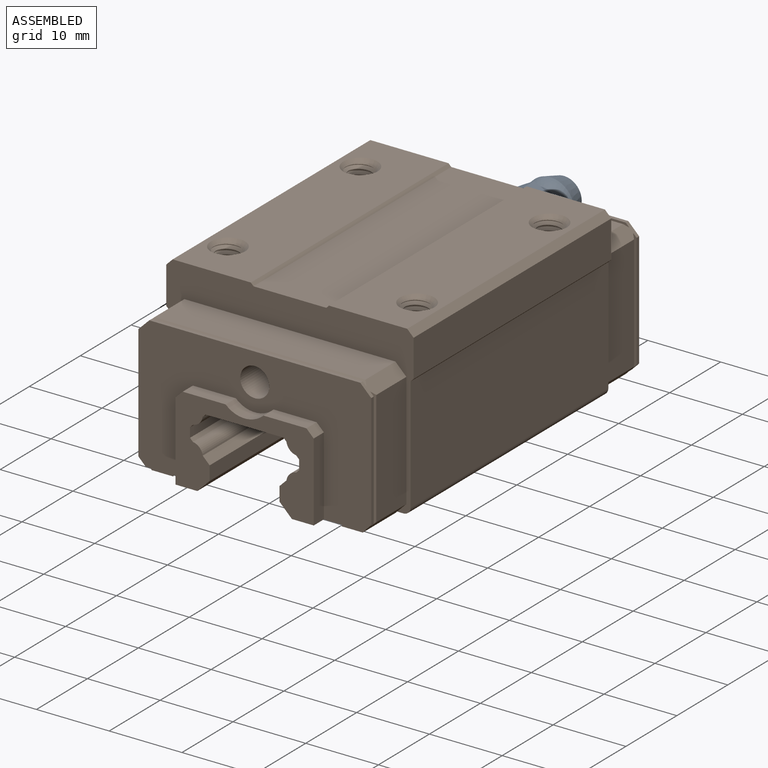
[diagram: assembled view]
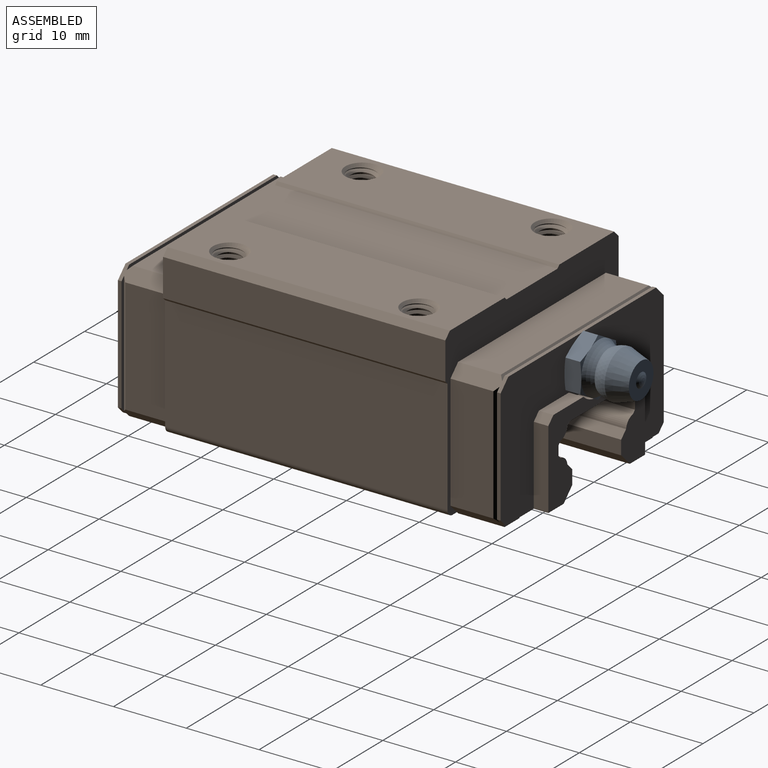
[diagram: assembled view, second angle]
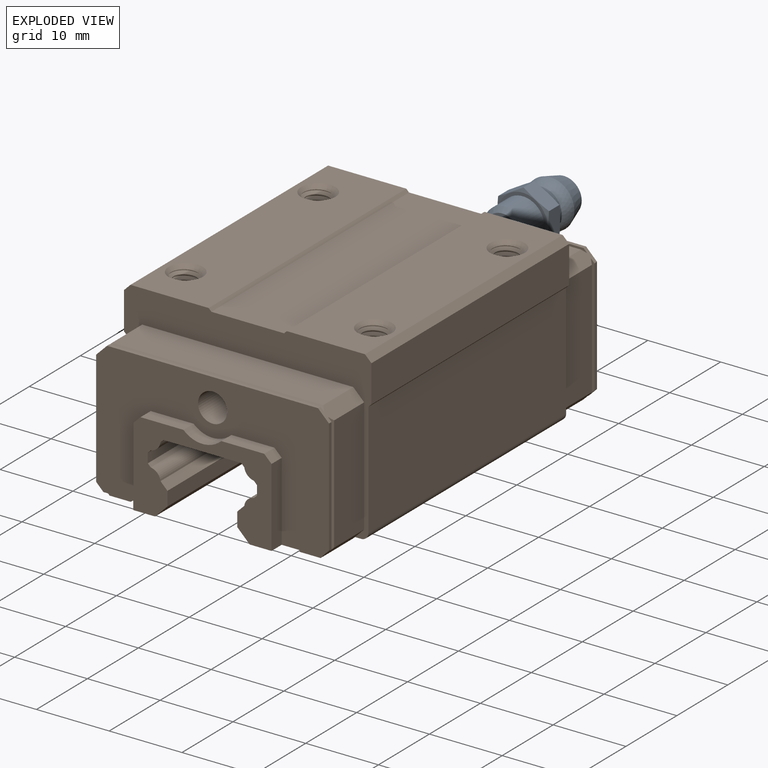
[diagram: exploded view]
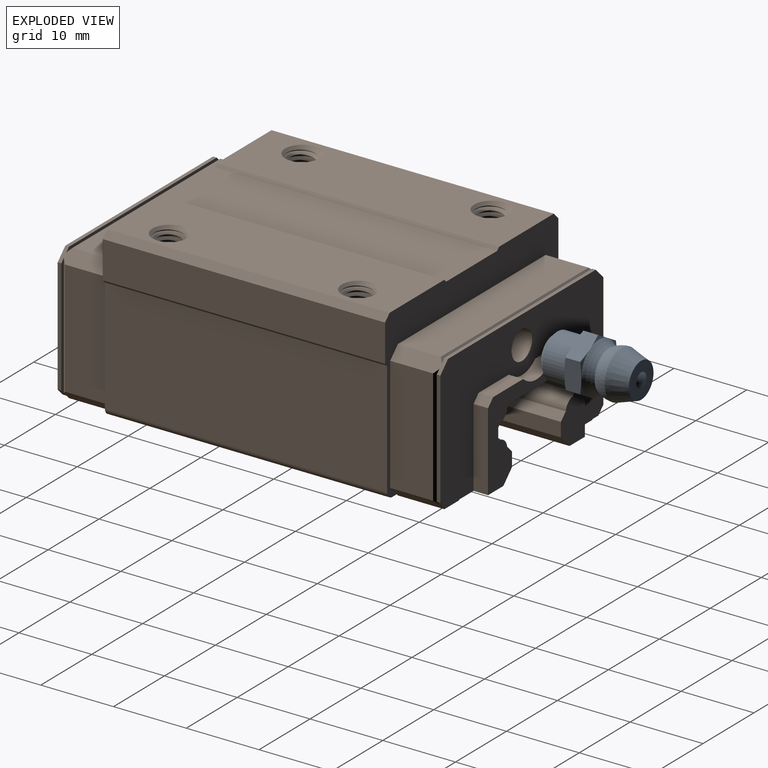
[diagram: exploded view, second angle]
ASSEMBLY  parts=2 mates=2
PART A: 22 faces, bbox 9.2x12.6x9.2 mm
  f0: torus R=8.4mm, axis (0,1,0), area 30mm2, adj f1,f2,f3,f4,f5,f6,f10,f11
  f1: cone r=5.04mm half-angle=75deg, axis (0,-1,0), area 0.8mm2, adj f0,f11,f12
  f2: cone r=5.04mm half-angle=75deg, axis (0,-1,0), area 0.8mm2, adj f0,f12,f13
  f3: cone r=5.04mm half-angle=75deg, axis (0,-1,0), area 0.8mm2, adj f0,f13,f14
  f4: cone r=5.04mm half-angle=75deg, axis (0,-1,0), area 0.8mm2, adj f0,f14,f15
  f5: cone r=5.04mm half-angle=75deg, axis (0,-1,0), area 0.8mm2, adj f0,f11,f16
  f6: cone r=5.04mm half-angle=75deg, axis (0,-1,0), area 0.8mm2, adj f0,f15,f16
  f7: sphere r=1.82mm, area 3.4mm2, adj f8
  f8: plane 4.84x4.84mm, normal (0,1,0), area 15.3mm2, adj f7,f9
  f9: cone r=3.3mm half-angle=18deg, axis (0,-1,0), area 51.1mm2, adj f8,f10
  f10: sphere r=3.3mm, area 36.1mm2, adj f0,f9
  f11: plane 3.7x2.54mm, normal (-0.5,0,0.87), area 9mm2, adj f0,f1,f5,f12,f16,f21
  f12: plane 3.7x2.54mm, normal (0.5,0,0.87), area 9mm2, adj f0,f1,f2,f11,f13,f21
  f13: plane 4.24x2.54mm, normal (1,0,0), area 9mm2, adj f0,f2,f3,f12,f14,f21
  f14: plane 3.7x2.54mm, normal (0.5,0,-0.87), area 9mm2, adj f0,f3,f4,f13,f15,f21
  f15: plane 3.7x2.54mm, normal (-0.5,0,-0.87), area 9mm2, adj f0,f4,f6,f14,f16,f21
  f16: plane 4.24x2.54mm, normal (-1,0,0), area 9mm2, adj f0,f5,f6,f11,f15,f21
  f17: plane 4.77x4.77mm, normal (0,-1,0), area 17.9mm2, adj f18
  f18: cone r=2.39mm half-angle=45deg, axis (0,1,0), area 14.7mm2, adj f17,f19
  f19: cylinder r=3mm len=6mm, axis (0,1,0), area 63.8mm2, adj f18,f20
  f20: plane 6.89x6.89mm, normal (0,-1,0), area 9mm2, adj f19,f21
  f21: cone r=3.44mm half-angle=75deg, axis (0,1,0), area 5.3mm2, adj f11,f12,f13,f14,f15,f16,f20
PART B: 148 faces, bbox 34.3x56.9x23.6 mm
  f0: plane 38.8x10.75mm, normal (0,0,1), area 382.4mm2, adj f33,f35,f50,f51,f131,f140
  f1: plane 38.8x10.75mm, normal (0,0,1), area 382.4mm2, adj f33,f35,f53,f54,f114,f122
  f2: plane 19x11.8mm, normal (0,-1,0), area 102.7mm2, adj f4,f5,f30,f31,f73,f74,f75,f76
  f3: plane 32x18.3mm, normal (0,-1,0), area 350.3mm2, adj f4,f5,f14,f15,f17,f22,f24,f25
  f4: plane 5.9x2mm, normal (0,0,1), area 11.8mm2, adj f2,f3,f73,f111
  f5: plane 5.9x2mm, normal (0,0,1), area 11.8mm2, adj f2,f3,f76,f111
  f6: plane 19x11.8mm, normal (0,1,0), area 102.7mm2, adj f8,f9,f30,f31,f69,f70,f71,f72
  f7: plane 32x18.3mm, normal (0,1,0), area 350.3mm2, adj f8,f9,f10,f11,f13,f18,f19,f20
  f8: plane 5.9x2mm, normal (0,0,1), area 11.8mm2, adj f6,f7,f70,f108
  f9: plane 5.9x2mm, normal (0,0,1), area 11.8mm2, adj f6,f7,f69,f108
  f10: plane 6.9x1.5mm, normal (-0.71,0,0.71), area 14.3mm2, adj f7,f11,f12,f28,f29,f35,f96,f97
  f11: plane 15.8x0.5mm, normal (-1,0,0), area 7.9mm2, adj f7,f10,f13,f106
  f12: plane 15.8x5.9mm, normal (-1,0,0), area 93.2mm2, adj f10,f13,f35,f107
  f13: plane 6.9x1.5mm, normal (-0.71,0,-0.71), area 14.1mm2, adj f7,f11,f12,f31,f34,f35,f56,f57
  f14: plane 6.9x1.5mm, normal (-0.71,0,0.71), area 14.3mm2, adj f3,f16,f17,f26,f27,f33,f98,f99
  f15: plane 6.9x1.5mm, normal (-0.71,0,-0.71), area 14.1mm2, adj f3,f16,f17,f31,f32,f33,f62,f67
  f16: plane 15.8x5.9mm, normal (-1,0,0), area 93.2mm2, adj f14,f15,f33,f104
  f17: plane 15.8x0.5mm, normal (-1,0,0), area 7.9mm2, adj f3,f14,f15,f105
  f18: plane 6.9x1.5mm, normal (0.71,0,0.71), area 14.3mm2, adj f7,f20,f21,f28,f29,f35,f96,f97
  f19: plane 6.9x1.5mm, normal (0.71,0,-0.71), area 14.1mm2, adj f7,f20,f21,f30,f35,f55,f60,f61
  f20: plane 15.8x0.5mm, normal (1,0,0), area 7.9mm2, adj f7,f18,f19,f102
  f21: plane 15.8x5.9mm, normal (1,0,0), area 93.2mm2, adj f18,f19,f35,f103
  f22: plane 6.9x1.5mm, normal (0.71,0,0.71), area 14.3mm2, adj f3,f23,f24,f26,f27,f33,f98,f99
  f23: plane 15.8x5.9mm, normal (1,0,0), area 93.2mm2, adj f22,f25,f33,f100
  f24: plane 15.8x0.5mm, normal (1,0,0), area 7.9mm2, adj f3,f22,f25,f101
  f25: plane 6.9x1.5mm, normal (0.71,0,-0.71), area 14.1mm2, adj f3,f23,f24,f30,f33,f63,f64,f68
  f26: plane 29x5.9mm, normal (0,0,1), area 171.1mm2, adj f14,f22,f33,f98
  f27: plane 29x0.5mm, normal (0,0,1), area 14.5mm2, adj f3,f14,f22,f99
  f28: plane 29x0.5mm, normal (0,0,1), area 14.5mm2, adj f7,f10,f18,f96
  f29: plane 29x5.9mm, normal (0,0,1), area 171.1mm2, adj f10,f18,f35,f97
  f30: plane 56.6x8.5mm, normal (0,0,-1), area 299.2mm2, adj f2,f3,f6,f7,f19,f25,f44,f55
  f31: plane 56.6x8.5mm, normal (0,0,-1), area 299.2mm2, adj f2,f3,f6,f7,f13,f15,f32,f34
  f32: plane 3.4x0.5mm, normal (0,-1,0), area 1.6mm2, adj f15,f31,f66,f67
  f33: plane 34x23.07mm, normal (0,-1,0), area 175mm2, adj f0,f1,f14,f15,f16,f22,f23,f25
  f34: plane 3.4x0.5mm, normal (0,1,0), area 1.6mm2, adj f13,f31,f57,f58
  f35: plane 34x23.07mm, normal (0,1,0), area 175mm2, adj f0,f1,f10,f12,f13,f18,f19,f21
  f36: plane 38.8x5.12mm, normal (-1,0,0), area 198.7mm2, adj f33,f35,f37,f54
  f37: plane 38.8x0.41mm, normal (-0.71,0,-0.71), area 22.5mm2, adj f33,f35,f36,f38
  f38: plane 38.8x5.39mm, normal (-1,0,0), area 209mm2, adj f33,f35,f37,f39
  f39: cylinder r=1mm len=38.8mm, axis (0,1,0), area 47.3mm2, adj f33,f35,f38,f40
  f40: plane 38.8x9.13mm, normal (-1,0,0), area 354.2mm2, adj f33,f35,f39,f41
  f41: cylinder r=1mm len=38.8mm, axis (0,1,0), area 60.9mm2, adj f33,f35,f40,f42
  f42: plane 38.8x3.59mm, normal (0,0,-1), area 139.3mm2, adj f33,f35,f41,f43,f56,f62
  f43: plane 38.8x0.27mm, normal (1,0,0), area 10.5mm2, adj f31,f42,f56,f62
  f44: plane 38.8x0.27mm, normal (-1,0,0), area 10.5mm2, adj f30,f45,f55,f63
  f45: plane 38.8x3.59mm, normal (0,0,-1), area 139.3mm2, adj f33,f35,f44,f46,f55,f63
  f46: cylinder r=1mm len=38.8mm, axis (0,1,0), area 60.9mm2, adj f33,f35,f45,f47
  f47: plane 38.8x15.66mm, normal (1,0,0), area 607.6mm2, adj f33,f35,f46,f48
  f48: plane 38.8x0.41mm, normal (0.71,0,-0.71), area 22.5mm2, adj f33,f35,f47,f49
  f49: plane 38.8x5.12mm, normal (1,0,0), area 198.7mm2, adj f33,f35,f48,f50
  f50: plane 38.8x0.88mm, normal (0.71,0,0.71), area 48.3mm2, adj f0,f33,f35,f49
  f51: plane 38.8x0.37mm, normal (-0.71,0,0.71), area 20.3mm2, adj f0,f33,f35,f52
  f52: plane 38.8x10mm, normal (0,0,1), area 388mm2, adj f33,f35,f51,f53
  f53: plane 38.8x0.37mm, normal (0.71,0,0.71), area 20.3mm2, adj f1,f33,f35,f52
  f54: plane 38.8x0.88mm, normal (-0.71,0,0.71), area 48.3mm2, adj f1,f33,f35,f36
  f55: plane 3.13x0.5mm, normal (0,-1,0), area 0.8mm2, adj f19,f30,f44,f45,f59,f60
  f56: plane 3.13x0.5mm, normal (0,-1,0), area 0.8mm2, adj f13,f31,f42,f43,f57,f58
  f57: plane 6.4x2.9mm, normal (0,0,-1), area 18.6mm2, adj f13,f34,f56,f58
  f58: plane 6.4x0.5mm, normal (1,0,0), area 3.2mm2, adj f31,f34,f56,f57
  f59: plane 6.4x0.5mm, normal (-1,0,0), area 3.2mm2, adj f30,f55,f60,f61
  f60: plane 6.4x2.9mm, normal (0,0,-1), area 18.6mm2, adj f19,f55,f59,f61
  f61: plane 3.4x0.5mm, normal (0,1,0), area 1.6mm2, adj f19,f30,f59,f60
  f62: plane 3.13x0.5mm, normal (0,1,0), area 0.8mm2, adj f15,f31,f42,f43,f66,f67
  f63: plane 3.13x0.5mm, normal (0,1,0), area 0.8mm2, adj f25,f30,f44,f45,f64,f65
  f64: plane 6.4x2.9mm, normal (0,0,-1), area 18.6mm2, adj f25,f63,f65,f68
  f65: plane 6.4x0.5mm, normal (-1,0,0), area 3.2mm2, adj f30,f63,f64,f68
  f66: plane 6.4x0.5mm, normal (1,0,0), area 3.2mm2, adj f31,f32,f62,f67
  f67: plane 6.4x2.9mm, normal (0,0,-1), area 18.6mm2, adj f15,f32,f62,f66
  f68: plane 3.4x0.5mm, normal (0,-1,0), area 1.6mm2, adj f25,f30,f64,f65
  f69: plane 2x1mm, normal (-0.71,0,0.71), area 2.8mm2, adj f6,f7,f9,f72
  f70: plane 2x1mm, normal (0.71,0,0.71), area 2.8mm2, adj f6,f7,f8,f71
  f71: plane 10.8x2mm, normal (1,0,0), area 21.6mm2, adj f6,f7,f30,f70
  f72: plane 10.8x2mm, normal (-1,0,0), area 21.6mm2, adj f6,f7,f31,f69
  f73: plane 2x1mm, normal (-0.71,0,0.71), area 2.8mm2, adj f2,f3,f4,f74
  f74: plane 10.8x2mm, normal (-1,0,0), area 21.6mm2, adj f2,f3,f31,f73
  f75: plane 10.8x2mm, normal (1,0,0), area 21.6mm2, adj f2,f3,f30,f76
  f76: plane 2x1mm, normal (0.71,0,0.71), area 2.8mm2, adj f2,f3,f5,f75
  f77: plane 56.6x1.7mm, normal (-0.71,0,-0.71), area 136.1mm2, adj f2,f6,f30,f79
  f78: plane 56.6x1.7mm, normal (0.71,0,-0.71), area 136.1mm2, adj f2,f6,f31,f95
  f79: plane 56.6x1.94mm, normal (-1,0,0), area 109.8mm2, adj f2,f6,f77,f80
  f80: plane 56.6x0.95mm, normal (-0.71,0,0.71), area 76.4mm2, adj f2,f6,f79,f81
  f81: cylinder r=1.56mm len=56.6mm, axis (0,1,0), area 115.3mm2, adj f2,f6,f80,f82
  f82: plane 56.6x0.41mm, normal (-0.71,0,0.71), area 32.5mm2, adj f2,f6,f81,f83
  f83: plane 56.6x1.31mm, normal (-1,0,0), area 74.1mm2, adj f2,f6,f82,f84
  f84: plane 56.6x0.42mm, normal (-0.71,0,-0.71), area 33.5mm2, adj f2,f6,f83,f85
  f85: cylinder r=1.56mm len=56.6mm, axis (0,1,0), area 113.8mm2, adj f2,f6,f84,f86
  f86: plane 56.6x0.41mm, normal (-0.71,0,-0.71), area 32.5mm2, adj f2,f6,f85,f87
  f87: plane 56.6x10.7mm, normal (0,0,-1), area 605.6mm2, adj f2,f6,f86,f88
  f88: plane 56.6x0.41mm, normal (0.71,0,-0.71), area 32.5mm2, adj f2,f6,f87,f89
  f89: cylinder r=1.56mm len=56.6mm, axis (0,1,0), area 113.8mm2, adj f2,f6,f88,f90
  f90: plane 56.6x0.42mm, normal (0.71,0,-0.71), area 33.5mm2, adj f2,f6,f89,f91
  f91: plane 56.6x1.31mm, normal (1,0,0), area 74.1mm2, adj f2,f6,f90,f92
  f92: plane 56.6x0.41mm, normal (0.71,0,0.71), area 32.5mm2, adj f2,f6,f91,f93
  f93: cylinder r=1.56mm len=56.6mm, axis (0,1,0), area 115.3mm2, adj f2,f6,f92,f94
  f94: plane 56.6x0.95mm, normal (0.71,0,0.71), area 76.4mm2, adj f2,f6,f93,f95
  f95: plane 56.6x1.94mm, normal (1,0,0), area 109.8mm2, adj f2,f6,f78,f94
  f96: plane 30x0.5mm, normal (0,-1,0), area 14.7mm2, adj f10,f18,f28,f97
  f97: plane 30x0.5mm, normal (0,0.71,0.71), area 20.9mm2, adj f10,f18,f29,f96
  f98: plane 30x0.5mm, normal (0,-0.71,0.71), area 20.9mm2, adj f14,f22,f26,f99
  f99: plane 30x0.5mm, normal (0,1,0), area 14.7mm2, adj f14,f22,f27,f98
  f100: plane 16.8x0.5mm, normal (0.71,-0.71,0), area 11.5mm2, adj f22,f23,f25,f101
  f101: plane 16.8x0.5mm, normal (0,1,0), area 8.2mm2, adj f22,f24,f25,f100
  f102: plane 16.8x0.5mm, normal (0,-1,0), area 8.2mm2, adj f18,f19,f20,f103
  f103: plane 16.8x0.5mm, normal (0.71,0.71,0), area 11.5mm2, adj f18,f19,f21,f102
  f104: plane 16.8x0.5mm, normal (-0.71,-0.71,0), area 11.5mm2, adj f14,f15,f16,f105
  f105: plane 16.8x0.5mm, normal (0,1,0), area 8.2mm2, adj f14,f15,f17,f104
  f106: plane 16.8x0.5mm, normal (0,-1,0), area 8.2mm2, adj f10,f11,f13,f107
  f107: plane 16.8x0.5mm, normal (-0.71,0.71,0), area 11.5mm2, adj f10,f12,f13,f106
  f108: cylinder r=3.75mm len=5.21mm, axis (0,1,0), area 11.5mm2, adj f6,f7,f8,f9
  f109: cylinder r=2mm len=4.5mm, axis (0,1,0), area 56.5mm2, adj f7,f110
  f110: plane 4x4mm, normal (0,1,0), area 12.6mm2, adj f109
  f111: cylinder r=3.75mm len=5.21mm, axis (0,1,0), area 11.5mm2, adj f2,f3,f4,f5
  f112: plane 4x4mm, normal (0,-1,0), area 12.6mm2, adj f113
  f113: cylinder r=2mm len=4.5mm, axis (0,1,0), area 56.5mm2, adj f3,f112
  f114: cone r=2.35mm half-angle=45deg, axis (0,0,1), area 10.3mm2, adj f1,f115,f117,f118,f120
  f115: cone r=2.35mm half-angle=45deg, axis (0,0,1), area 0.2mm2, adj f114,f118,f119
  f116: plane 3.85x3.83mm, normal (0,0,1), area 10mm2, adj f117,f118,f119,f120
  f117: cylinder r=2mm len=4.65mm, axis (0,0,1), area 4.7mm2, adj f114,f116,f118,f120
  f118: bspline ~4.93x4.62mm, area 36.7mm2, adj f114,f115,f116,f117,f119
  f119: cylinder r=1.55mm len=4.2mm, axis (0,0,1), area 5.3mm2, adj f115,f116,f118,f120
  f120: bspline ~5.42x4.72mm, area 37.1mm2, adj f114,f116,f117,f119
  f121: cone r=2.35mm half-angle=45deg, axis (0,0,1), area 0.2mm2, adj f122,f126,f128
  f122: cone r=2.35mm half-angle=45deg, axis (0,0,1), area 10.3mm2, adj f1,f121,f127,f128,f129
  f123: plane 3.85x3.84mm, normal (0,0,1), area 10mm2, adj f124,f126,f127,f128,f129
  f124: plane 0x0mm, normal (1,0,0), area 0mm2, adj f123,f125,f127
  f125: bspline ~2.67x2.2mm, area 0mm2, adj f124,f127,f128
  f126: cylinder r=1.55mm len=4.2mm, axis (0,0,1), area 5.3mm2, adj f121,f123,f128,f129
  f127: cylinder r=2mm len=4.65mm, axis (0,0,1), area 9.2mm2, adj f122,f123,f124,f125,f128,f129
  f128: bspline ~4.93x4.62mm, area 37.1mm2, adj f121,f122,f123,f125,f126,f127
  f129: bspline ~5.43x4.74mm, area 37mm2, adj f122,f123,f126,f127
  f130: cone r=2.35mm half-angle=45deg, axis (0,0,1), area 0.2mm2, adj f131,f135,f137
  f131: cone r=2.35mm half-angle=45deg, axis (0,0,1), area 10.3mm2, adj f0,f130,f136,f137,f138
  f132: plane 3.85x3.84mm, normal (0,0,1), area 10mm2, adj f133,f135,f136,f137,f138
  f133: plane 0x0mm, normal (1,0,0), area 0mm2, adj f132,f134,f136
  f134: bspline ~2.67x2.2mm, area 0mm2, adj f133,f136,f137
  f135: cylinder r=1.55mm len=4.2mm, axis (0,0,1), area 5.3mm2, adj f130,f132,f137,f138
  f136: cylinder r=2mm len=4.65mm, axis (0,0,1), area 9.2mm2, adj f131,f132,f133,f134,f137,f138
  f137: bspline ~4.93x4.62mm, area 37.1mm2, adj f130,f131,f132,f134,f135,f136
  f138: bspline ~5.43x4.74mm, area 37mm2, adj f131,f132,f135,f136
  f139: cone r=2.35mm half-angle=45deg, axis (0,0,1), area 0.2mm2, adj f140,f144,f146
  f140: cone r=2.35mm half-angle=45deg, axis (0,0,1), area 10.3mm2, adj f0,f139,f145,f146,f147
  f141: plane 3.85x3.84mm, normal (0,0,1), area 10mm2, adj f142,f144,f145,f146,f147
  f142: plane 0x0mm, normal (1,0,0), area 0mm2, adj f141,f143,f145
  f143: bspline ~2.67x2.2mm, area 0mm2, adj f142,f145,f146
  f144: cylinder r=1.55mm len=4.2mm, axis (0,0,1), area 5.3mm2, adj f139,f141,f146,f147
  f145: cylinder r=2mm len=4.65mm, axis (0,0,1), area 9.2mm2, adj f140,f141,f142,f143,f146,f147
  f146: bspline ~4.93x4.62mm, area 37.1mm2, adj f139,f140,f141,f143,f144,f145
  f147: bspline ~5.43x4.74mm, area 37mm2, adj f140,f141,f144,f145
PLACE A t=(-113.87,-79.61,18.17)mm
PLACE B t=(-113.87,-79.61,18.17)mm
MATE planar A.f18 <-> B.f7  axis (0,-1,0) through (-113.87,-53.31,37.87)mm
MATE cylindrical A.f0 <-> B.f108  axis (0,1,0) through (-113.87,-55,37.87)mm
